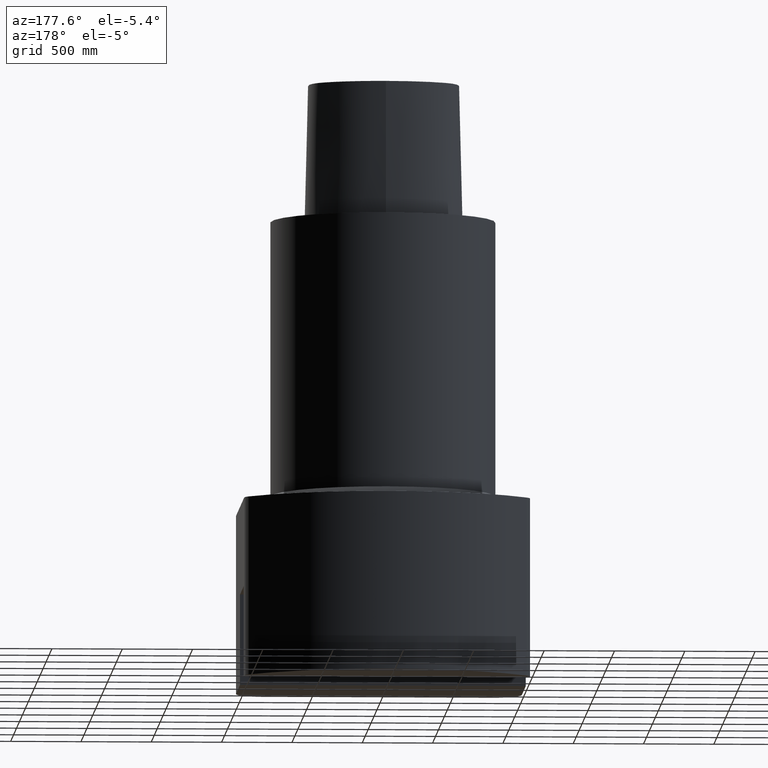
[diagram: clean part render]
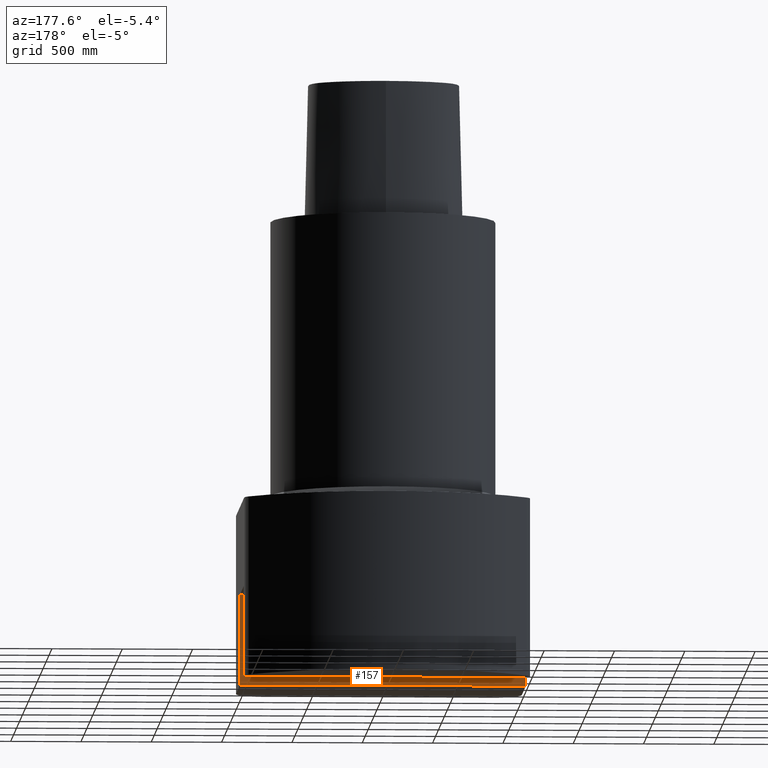
[diagram: same view with one face highlighted and labeled with its STEP entity id]
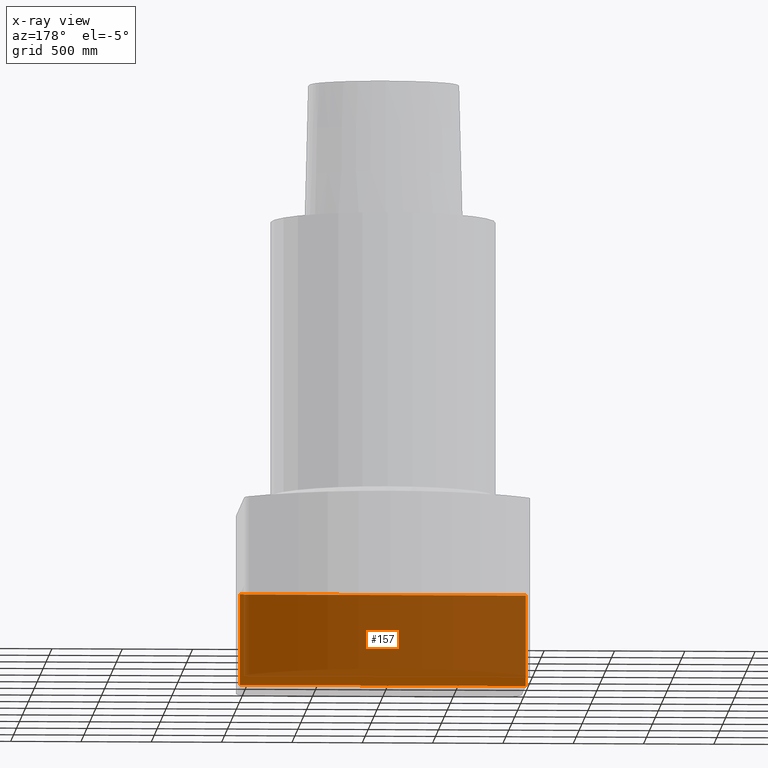
[diagram: x-ray of the same camera — body ghosted, the highlighted face saturated]
A machine part, auxiliary view. The second image highlights one B-rep face of the part: STEP entity #157.
The next image is the same camera in x-ray: the body ghosted, the highlighted face saturated — about 89% of this face is hidden behind the body in this view.
In plain terms, the highlighted planar face has unit normal (-0, -1, 0).
Its self-contained STEP definition (entity closure, byte-faithful):
#115=EDGE_CURVE('Unnamed[1]',#308,#309,#310,.T.);
#123=EDGE_CURVE('Unnamed[1]',#320,#308,#321,.T.);
#157=ADVANCED_FACE('Unnamed[1]',(#366),#367,.F.);
#226=EDGE_CURVE('Unnamed[1]',#301,#320,#455,.T.);
#251=EDGE_CURVE('Unnamed[1]',#309,#301,#484,.T.);
#301=VERTEX_POINT('',#537);
#308=VERTEX_POINT('',#547);
#309=VERTEX_POINT('',#548);
#310=LINE('',#549,#550);
#320=VERTEX_POINT('',#566);
#321=LINE('',#567,#568);
#366=FACE_OUTER_BOUND('',#633,.T.);
#367=PLANE('',#634);
#455=LINE('',#877,#878);
#484=LINE('',#1004,#1005);
#537=CARTESIAN_POINT('',(39.9999999999996,-1.53080849893418E-014,-130.0));
#547=CARTESIAN_POINT('',(-40.0000000000004,9.42978035343539E-016,-104.6));
#548=CARTESIAN_POINT('',(-40.0000000000004,-6.12323399573598E-016,-130.0));
#549=CARTESIAN_POINT('',(-40.0000000000004,-8.37839604578744E-015,-256.829591219622));
#550=VECTOR('',#1042,1.0);
#566=CARTESIAN_POINT('',(39.9999999999996,-1.37527835544247E-014,-104.6));
#567=CARTESIAN_POINT('',(39.9999999999996,-1.37527835544247E-014,-104.6));
#568=VECTOR('',#1048,1.0);
#633=EDGE_LOOP('',(#1102,#1103,#1104,#1105));
#634=AXIS2_PLACEMENT_3D('',#1106,#1107,#1108);
#877=CARTESIAN_POINT('',(39.9999999999996,-2.30741576355557E-014,-256.829591219622));
#878=VECTOR('',#1214,1.0);
#1004=CARTESIAN_POINT('',(12.5,-1.02564169428591E-014,-130.0));
#1005=VECTOR('',#1250,1.0);
#1042=DIRECTION('',(1.22464679914735E-016,-6.12323399573677E-017,-1.0));
#1048=DIRECTION('',(-1.0,1.83697019872103E-016,-1.22464679914735E-016));
#1102=ORIENTED_EDGE('',*,*,#251,.F.);
#1103=ORIENTED_EDGE('',*,*,#115,.F.);
#1104=ORIENTED_EDGE('',*,*,#123,.F.);
#1105=ORIENTED_EDGE('',*,*,#226,.F.);
#1106=CARTESIAN_POINT('',(-4.1618936984752E-013,-1.57262768406716E-014,-256.829591219622));
#1107=DIRECTION('',(-1.83697019872103E-016,-1.0,6.12323399573677E-017));
#1108=DIRECTION('',(1.0,-1.83697019872103E-016,1.22464679914735E-016));
#1214=DIRECTION('',(-1.22464679914735E-016,6.12323399573677E-017,1.0));
#1250=DIRECTION('',(1.0,-1.83697019872103E-016,1.22464679914735E-016));